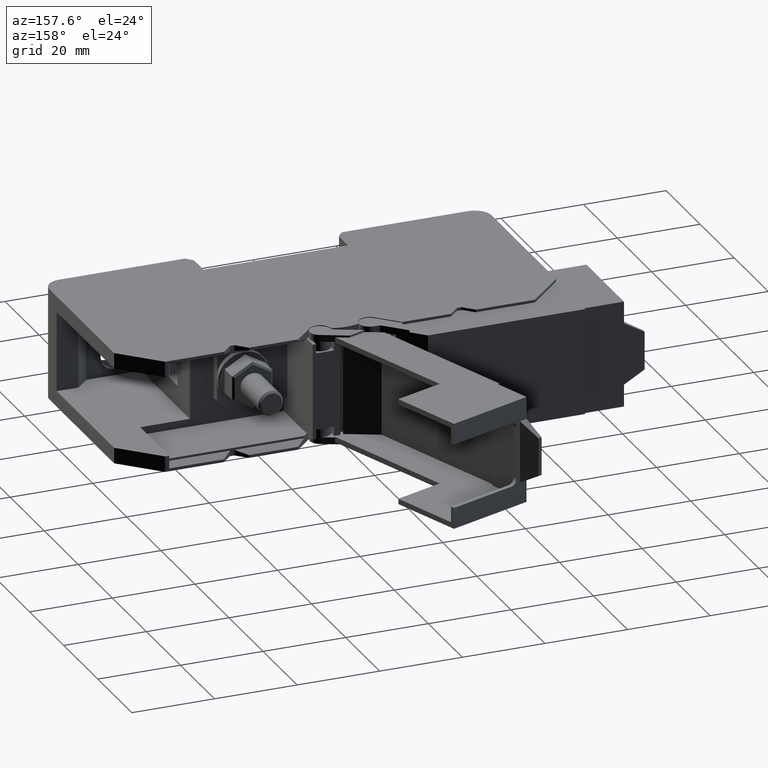
[diagram: clean part render]
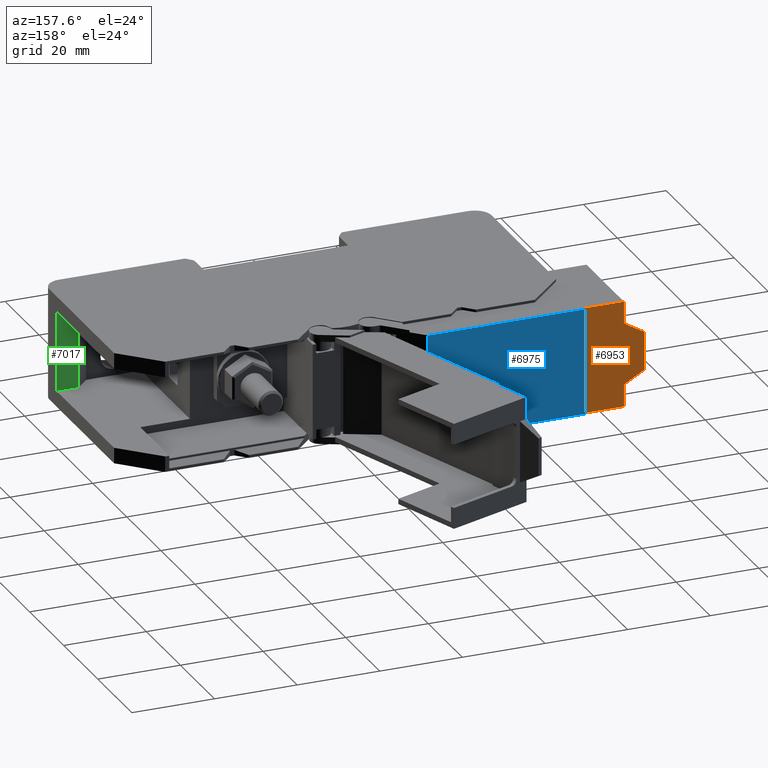
[diagram: same view with three faces highlighted in distinct colors, each labeled with its STEP entity id]
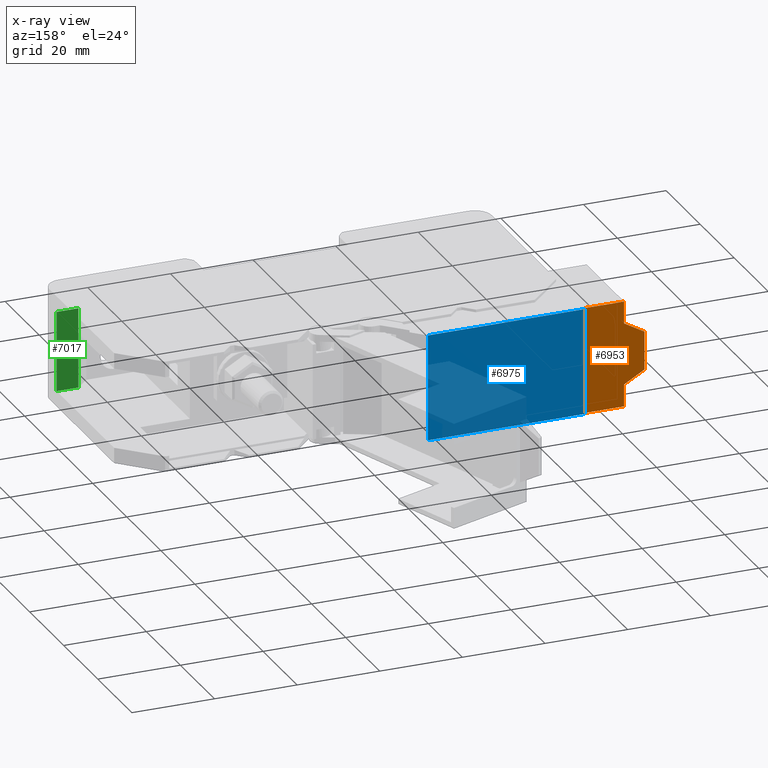
[diagram: x-ray of the same camera — body ghosted, the three highlighted faces saturated]
A machine part, auxiliary view with three faces highlighted in distinct colors.
The next image is the same camera in x-ray (body ghosted, the three faces saturated) — at least one of them is partly hidden behind the body in this view.
Their STEP definitions:

[orange] entity #6953 — the highlighted planar face has unit normal (0, -1, 0).
#1340 = LINE ( 'NONE', #1364, #2737 ) ;
#1364 = CARTESIAN_POINT ( 'NONE',  ( -68.35000631283617200, 32.69999999806169200, 8.886751345939556400 ) ) ;
#1377 = DIRECTION ( 'NONE',  ( 0.8660254038441674900, 3.463496167389632400E-011, -0.4999999998965465300 ) ) ;
#1393 = CARTESIAN_POINT ( 'NONE',  ( -68.35000631283465100, 32.69999999806169200, -6.909038085517900100 ) ) ;
#1412 = LINE ( 'NONE', #1393, #2972 ) ;
#1413 = DIRECTION ( 'NONE',  ( 0.0000000000000000000, -0.0000000000000000000, -1.000000000000000000 ) ) ;
#2320 = EDGE_CURVE ( 'NONE', #13020, #13026, #6375, .T. ) ;
#2332 = EDGE_CURVE ( 'NONE', #12937, #12981, #6396, .T. ) ;
#2517 = EDGE_CURVE ( 'NONE', #13153, #12937, #4450, .T. ) ;
#2518 = EDGE_CURVE ( 'NONE', #13026, #13153, #4401, .T. ) ;
#2576 = EDGE_CURVE ( 'NONE', #13132, #13020, #4004, .T. ) ;
#2585 = EDGE_CURVE ( 'NONE', #12941, #13132, #4047, .T. ) ;
#2737 = VECTOR ( 'NONE', #1377, 1000.000000000000200 ) ;
#2829 = AXIS2_PLACEMENT_3D ( 'NONE', #5458, #5444, #5449 ) ;
#2972 = VECTOR ( 'NONE', #1413, 1000.000000000000000 ) ;
#4004 = LINE ( 'NONE', #4005, #12027 ) ;
#4005 = CARTESIAN_POINT ( 'NONE',  ( -72.78191786683675000, 32.69999999826164600, 0.6499999999994879900 ) ) ;
#4008 = DIRECTION ( 'NONE',  ( 1.000000000000000000, -0.0000000000000000000, 0.0000000000000000000 ) ) ;
#4047 = LINE ( 'NONE', #4048, #12033 ) ;
#4048 = CARTESIAN_POINT ( 'NONE',  ( -63.35000631087019200, 32.69999999826165300, -6.909038085517900100 ) ) ;
#4056 = DIRECTION ( 'NONE',  ( 0.0000000000000000000, -0.0000000000000000000, -1.000000000000000000 ) ) ;
#4401 = LINE ( 'NONE', #4421, #4726 ) ;
#4412 = DIRECTION ( 'NONE',  ( 0.0000000000000000000, -0.0000000000000000000, -1.000000000000000000 ) ) ;
#4417 = DIRECTION ( 'NONE',  ( -1.000000000000000000, -0.0000000000000000000, -0.0000000000000000000 ) ) ;
#4421 = CARTESIAN_POINT ( 'NONE',  ( -72.78191786683675000, 32.69999999855584600, 26.34999999999962800 ) ) ;
#4450 = LINE ( 'NONE', #4453, #4725 ) ;
#4453 = CARTESIAN_POINT ( 'NONE',  ( -63.35000631167550700, 32.69999999826165300, -6.909038085517900100 ) ) ;
#4459 = VECTOR ( 'NONE', #6425, 1000.000000000000100 ) ;
#4509 = VECTOR ( 'NONE', #6371, 1000.000000000000000 ) ;
#4725 = VECTOR ( 'NONE', #4412, 1000.000000000000000 ) ;
#4726 = VECTOR ( 'NONE', #4417, 1000.000000000000000 ) ;
#5440 = FACE_OUTER_BOUND ( 'NONE', #11035, .T. ) ;
#5441 = PLANE ( 'NONE',  #2829 ) ;
#5444 = DIRECTION ( 'NONE',  ( 3.999295339340845100E-011, -1.000000000000000000, 0.0000000000000000000 ) ) ;
#5449 = DIRECTION ( 'NONE',  ( 1.000000000000000000, 3.999295339340845100E-011, 0.0000000000000000000 ) ) ;
#5458 = CARTESIAN_POINT ( 'NONE',  ( -54.06722220539720800, 32.69999999863289700, -6.909038085517900100 ) ) ;
#6371 = DIRECTION ( 'NONE',  ( -0.0000000000000000000, 0.0000000000000000000, 1.000000000000000000 ) ) ;
#6375 = LINE ( 'NONE', #6386, #4509 ) ;
#6386 = CARTESIAN_POINT ( 'NONE',  ( -53.74999999971672100, 32.69999999864558000, -6.909038085517900100 ) ) ;
#6396 = LINE ( 'NONE', #6408, #4459 ) ;
#6408 = CARTESIAN_POINT ( 'NONE',  ( -63.35000631112093600, 32.69999999826165300, 21.00000000053341900 ) ) ;
#6425 = DIRECTION ( 'NONE',  ( -0.8660254038187364900, -3.463496167462673800E-011, -0.4999999999405945200 ) ) ;
#6953 = ADVANCED_FACE ( 'NONE', ( #5440 ), #5441, .F. ) ;
#7121 = EDGE_CURVE ( 'NONE', #12940, #12941, #1340, .T. ) ;
#7146 = EDGE_CURVE ( 'NONE', #12981, #12940, #1412, .T. ) ;
#9917 = ORIENTED_EDGE ( 'NONE', *, *, #2576, .F. ) ;
#9920 = ORIENTED_EDGE ( 'NONE', *, *, #2320, .F. ) ;
#9939 = ORIENTED_EDGE ( 'NONE', *, *, #2585, .F. ) ;
#9948 = ORIENTED_EDGE ( 'NONE', *, *, #2518, .F. ) ;
#9974 = ORIENTED_EDGE ( 'NONE', *, *, #7121, .F. ) ;
#10006 = ORIENTED_EDGE ( 'NONE', *, *, #2332, .F. ) ;
#10011 = ORIENTED_EDGE ( 'NONE', *, *, #7146, .F. ) ;
#10013 = ORIENTED_EDGE ( 'NONE', *, *, #2517, .F. ) ;
#11035 = EDGE_LOOP ( 'NONE', ( #9948, #9920, #9917, #9939, #9974, #10011, #10006, #10013 ) ) ;
#12027 = VECTOR ( 'NONE', #4008, 1000.000000000000000 ) ;
#12033 = VECTOR ( 'NONE', #4056, 1000.000000000000000 ) ;
#12937 = VERTEX_POINT ( 'NONE', #14133 ) ;
#12940 = VERTEX_POINT ( 'NONE', #14165 ) ;
#12941 = VERTEX_POINT ( 'NONE', #14159 ) ;
#12981 = VERTEX_POINT ( 'NONE', #14211 ) ;
#13020 = VERTEX_POINT ( 'NONE', #14235 ) ;
#13026 = VERTEX_POINT ( 'NONE', #14261 ) ;
#13132 = VERTEX_POINT ( 'NONE', #14347 ) ;
#13153 = VERTEX_POINT ( 'NONE', #14360 ) ;
#14133 = CARTESIAN_POINT ( 'NONE',  ( -63.35000631128625100, 32.69999999826165300, 21.00000000031641900 ) ) ;
#14159 = CARTESIAN_POINT ( 'NONE',  ( -63.35000631050770200, 32.69999999826164600, 5.999999999652749800 ) ) ;
#14165 = CARTESIAN_POINT ( 'NONE',  ( -68.35000631283585900, 32.69999999807835400, 8.886751345941137400 ) ) ;
#14211 = CARTESIAN_POINT ( 'NONE',  ( -68.35000631283750700, 32.69999999806169200, 18.11324865405050800 ) ) ;
#14235 = CARTESIAN_POINT ( 'NONE',  ( -53.74999999971672100, 32.69999999851760500, 0.6499999999994866600 ) ) ;
#14261 = CARTESIAN_POINT ( 'NONE',  ( -53.74999999971672100, 32.69999999856235500, 26.34999999999962800 ) ) ;
#14347 = CARTESIAN_POINT ( 'NONE',  ( -63.35000631075185900, 32.69999999826164600, 0.6499999999994877700 ) ) ;
#14360 = CARTESIAN_POINT ( 'NONE',  ( -63.35000631167550700, 32.69999999845779100, 26.34999999999962800 ) ) ;

[blue] entity #6975 — the highlighted planar face has unit normal (-0, 1, 0).
#1459 = CARTESIAN_POINT ( 'NONE',  ( -53.74999999971672100, 33.20000000016679600, 79.68051769017860400 ) ) ;
#1461 = LINE ( 'NONE', #1459, #2962 ) ;
#1470 = DIRECTION ( 'NONE',  ( 0.0000000000000000000, -1.599436321127340000E-021, 1.000000000000000000 ) ) ;
#2541 = EDGE_CURVE ( 'NONE', #13202, #13214, #3889, .T. ) ;
#2560 = EDGE_CURVE ( 'NONE', #13214, #13053, #3922, .T. ) ;
#2638 = EDGE_CURVE ( 'NONE', #13012, #13202, #4175, .T. ) ;
#2796 = AXIS2_PLACEMENT_3D ( 'NONE', #5594, #5591, #5592 ) ;
#2962 = VECTOR ( 'NONE', #1470, 1000.000000000000000 ) ;
#3880 = CARTESIAN_POINT ( 'NONE',  ( -15.71374708606264300, 33.19999999969896000, 79.68051769017860400 ) ) ;
#3884 = DIRECTION ( 'NONE',  ( 0.0000000000000000000, 0.0000000000000000000, 1.000000000000000000 ) ) ;
#3889 = LINE ( 'NONE', #3880, #4786 ) ;
#3922 = LINE ( 'NONE', #3924, #4869 ) ;
#3924 = CARTESIAN_POINT ( 'NONE',  ( -72.78191786683675000, 33.19999999979765400, 26.34999999999963200 ) ) ;
#3932 = DIRECTION ( 'NONE',  ( -1.000000000000000000, -0.0000000000000000000, -0.0000000000000000000 ) ) ;
#4169 = DIRECTION ( 'NONE',  ( 1.000000000000000000, -0.0000000000000000000, 0.0000000000000000000 ) ) ;
#4175 = LINE ( 'NONE', #4192, #14788 ) ;
#4192 = CARTESIAN_POINT ( 'NONE',  ( -72.78191786683675000, 33.19999999988937800, 0.6499999999994879900 ) ) ;
#4786 = VECTOR ( 'NONE', #3884, 1000.000000000000000 ) ;
#4869 = VECTOR ( 'NONE', #3932, 1000.000000000000000 ) ;
#5565 = PLANE ( 'NONE',  #2796 ) ;
#5566 = FACE_OUTER_BOUND ( 'NONE', #11071, .T. ) ;
#5591 = DIRECTION ( 'NONE',  ( -6.396618224657038500E-032, 1.000000000000000000, 1.599436321127340000E-021 ) ) ;
#5592 = DIRECTION ( 'NONE',  ( 0.0000000000000000000, -1.599436321127340000E-021, 1.000000000000000000 ) ) ;
#5594 = CARTESIAN_POINT ( 'NONE',  ( -15.71374708653045000, 33.20000000016679600, 79.68051769017860400 ) ) ;
#6975 = ADVANCED_FACE ( 'NONE', ( #5566 ), #5565, .T. ) ;
#7159 = EDGE_CURVE ( 'NONE', #13012, #13053, #1461, .T. ) ;
#9919 = ORIENTED_EDGE ( 'NONE', *, *, #2638, .F. ) ;
#9928 = ORIENTED_EDGE ( 'NONE', *, *, #2560, .F. ) ;
#9938 = ORIENTED_EDGE ( 'NONE', *, *, #2541, .F. ) ;
#9961 = ORIENTED_EDGE ( 'NONE', *, *, #7159, .T. ) ;
#11071 = EDGE_LOOP ( 'NONE', ( #9961, #9928, #9938, #9919 ) ) ;
#13012 = VERTEX_POINT ( 'NONE', #14217 ) ;
#13053 = VERTEX_POINT ( 'NONE', #14292 ) ;
#13202 = VERTEX_POINT ( 'NONE', #14419 ) ;
#13214 = VERTEX_POINT ( 'NONE', #14480 ) ;
#14217 = CARTESIAN_POINT ( 'NONE',  ( -53.74999999971672800, 33.19999999999058100, 0.6499999999994843200 ) ) ;
#14292 = CARTESIAN_POINT ( 'NONE',  ( -53.74999999971672100, 33.20000000006722700, 26.34999999999963900 ) ) ;
#14419 = CARTESIAN_POINT ( 'NONE',  ( -15.71374708598745700, 33.19999999998048400, 0.6499999999994782200 ) ) ;
#14480 = CARTESIAN_POINT ( 'NONE',  ( -15.71374708602592200, 33.19999999984059300, 26.34999999999962500 ) ) ;
#14788 = VECTOR ( 'NONE', #4169, 1000.000000000000000 ) ;

[green] entity #7017 — the highlighted planar face has unit normal (0, -1, -0).
#2493 = EDGE_CURVE ( 'NONE', #13154, #13069, #4397, .T. ) ;
#2873 = AXIS2_PLACEMENT_3D ( 'NONE', #5824, #5809, #5834 ) ;
#4369 = CARTESIAN_POINT ( 'NONE',  ( 48.24000000000909000, -16.96122401770835400, 8.999999999999870300 ) ) ;
#4397 = LINE ( 'NONE', #4369, #4768 ) ;
#4407 = DIRECTION ( 'NONE',  ( 0.0000000000000000000, 3.491483361109380100E-015, -1.000000000000000000 ) ) ;
#4768 = VECTOR ( 'NONE', #4407, 1000.000000000000000 ) ;
#5777 = FACE_OUTER_BOUND ( 'NONE', #11151, .T. ) ;
#5784 = PLANE ( 'NONE',  #2873 ) ;
#5809 = DIRECTION ( 'NONE',  ( 0.0000000000000000000, -1.000000000000000000, -3.491483361109380100E-015 ) ) ;
#5824 = CARTESIAN_POINT ( 'NONE',  ( -5.634381849972670300E-012, -16.96122401770835400, 8.999999999999870300 ) ) ;
#5834 = DIRECTION ( 'NONE',  ( 0.0000000000000000000, 3.491483361109380100E-015, -1.000000000000000000 ) ) ;
#7017 = ADVANCED_FACE ( 'NONE', ( #5777 ), #5784, .F. ) ;
#8249 = CARTESIAN_POINT ( 'NONE',  ( 53.50000000000000000, -16.96122401770840000, 3.799999999999924800 ) ) ;
#8265 = CARTESIAN_POINT ( 'NONE',  ( 53.50000000000000000, -16.96122401770840000, 23.19999999999999900 ) ) ;
#9006 = CARTESIAN_POINT ( 'NONE',  ( 28.75000000000915900, -16.96122401770840000, 3.799999999999924800 ) ) ;
#9018 = DIRECTION ( 'NONE',  ( -1.000000000000000000, 0.0000000000000000000, -0.0000000000000000000 ) ) ;
#9073 = LINE ( 'NONE', #9006, #14584 ) ;
#9209 = LINE ( 'NONE', #9350, #14620 ) ;
#9323 = DIRECTION ( 'NONE',  ( 1.000000000000000000, 0.0000000000000000000, -0.0000000000000000000 ) ) ;
#9350 = CARTESIAN_POINT ( 'NONE',  ( 43.75000000000002800, -16.96122401770840000, 23.19999999999999900 ) ) ;
#9544 = DIRECTION ( 'NONE',  ( -0.0000000000000000000, -0.0000000000000000000, -1.000000000000000000 ) ) ;
#9569 = LINE ( 'NONE', #9584, #14648 ) ;
#9584 = CARTESIAN_POINT ( 'NONE',  ( 53.50000000000000000, -16.96122401770840000, 13.50000000000000000 ) ) ;
#10341 = ORIENTED_EDGE ( 'NONE', *, *, #14997, .T. ) ;
#10368 = ORIENTED_EDGE ( 'NONE', *, *, #15031, .T. ) ;
#10395 = ORIENTED_EDGE ( 'NONE', *, *, #14960, .T. ) ;
#10531 = ORIENTED_EDGE ( 'NONE', *, *, #2493, .F. ) ;
#11151 = EDGE_LOOP ( 'NONE', ( #10531, #10341, #10368, #10395 ) ) ;
#13069 = VERTEX_POINT ( 'NONE', #14264 ) ;
#13154 = VERTEX_POINT ( 'NONE', #14363 ) ;
#13318 = VERTEX_POINT ( 'NONE', #8265 ) ;
#13332 = VERTEX_POINT ( 'NONE', #8249 ) ;
#14264 = CARTESIAN_POINT ( 'NONE',  ( 48.24000000000906100, -16.96122401770836800, 3.799999999999924800 ) ) ;
#14363 = CARTESIAN_POINT ( 'NONE',  ( 48.24000000000909000, -16.96122401770840000, 23.19999999999999900 ) ) ;
#14584 = VECTOR ( 'NONE', #9018, 1000.000000000000000 ) ;
#14620 = VECTOR ( 'NONE', #9323, 1000.000000000000000 ) ;
#14648 = VECTOR ( 'NONE', #9544, 1000.000000000000000 ) ;
#14960 = EDGE_CURVE ( 'NONE', #13332, #13069, #9073, .T. ) ;
#14997 = EDGE_CURVE ( 'NONE', #13154, #13318, #9209, .T. ) ;
#15031 = EDGE_CURVE ( 'NONE', #13318, #13332, #9569, .T. ) ;